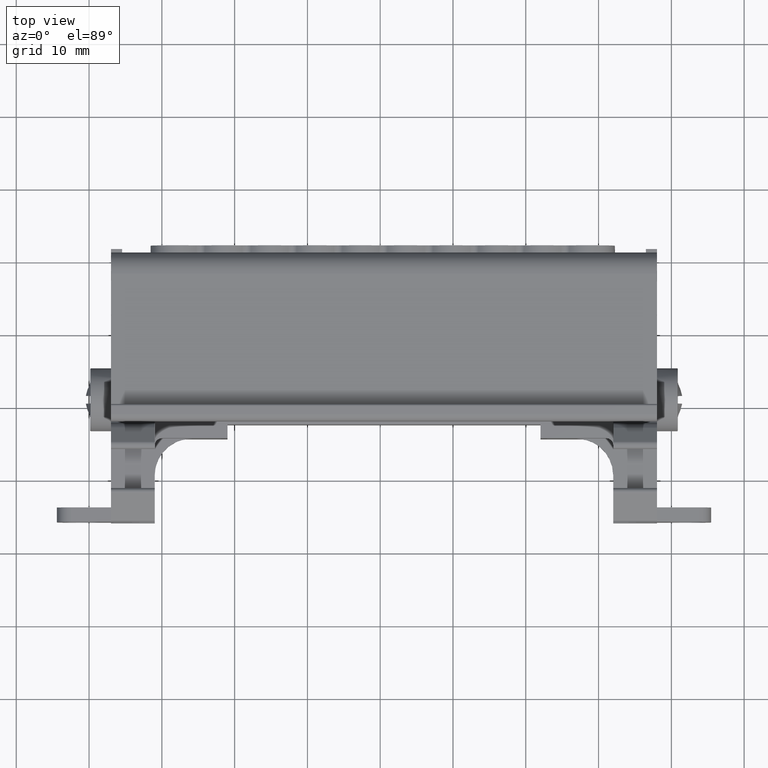
[diagram: clean part render]
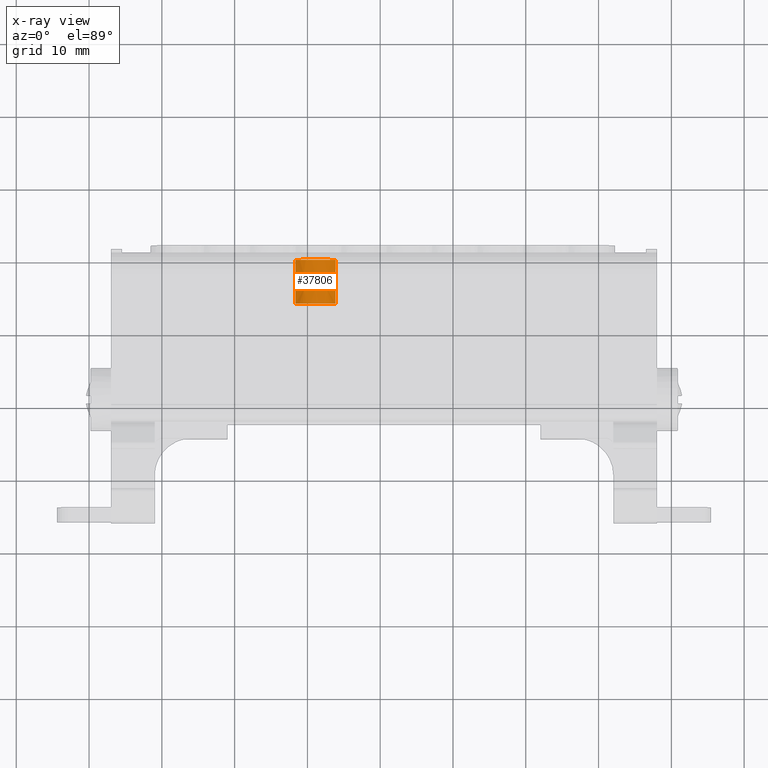
[diagram: x-ray — body ghosted, one internal face saturated and labeled with its STEP entity id]
A machine part, top view, then the same camera in x-ray: the body is ghosted and one INTERNAL B-rep face — a face not visible from any outside direction — is saturated and labeled: STEP entity #37806.
In plain terms, the highlighted conical surface has half-angle 3 deg.
Its self-contained STEP definition (entity closure, byte-faithful):
#1220 = CONICAL_SURFACE ( 'NONE', #1257, 3.724217246605654500, 0.05235987755960551400 ) ;
#1257 = AXIS2_PLACEMENT_3D ( 'NONE', #24613, #24651, #24662 ) ;
#3151 = EDGE_LOOP ( 'NONE', ( #39118, #39223, #39187, #39208 ) ) ;
#3933 = EDGE_CURVE ( 'NONE', #33898, #33921, #22572, .T. ) ;
#4204 = EDGE_CURVE ( 'NONE', #33910, #33875, #39712, .T. ) ;
#4221 = EDGE_CURVE ( 'NONE', #33875, #33921, #39715, .T. ) ;
#4222 = EDGE_CURVE ( 'NONE', #33898, #33910, #39744, .T. ) ;
#21549 = CARTESIAN_POINT ( 'NONE',  ( -236.1391113306501100, -105.8992027544382200, 142.9402541306618000 ) ) ;
#21630 = CARTESIAN_POINT ( 'NONE',  ( -241.6397672310905900, -105.8992027549647900, 142.9402541374069800 ) ) ;
#21633 = CARTESIAN_POINT ( 'NONE',  ( -236.1108892742254000, -99.87903667990821100, 143.4063540216821500 ) ) ;
#21669 = CARTESIAN_POINT ( 'NONE',  ( -241.6679892873095000, -99.87903668031201200, 143.4063540274529800 ) ) ;
#22572 = B_SPLINE_CURVE_WITH_KNOTS ( 'NONE', 3,
 ( #35086, #35098, #35105, #35130, #35091, #35137, #35080, #35082, #35099, #35100, #35083, #35117, #35101, #35119, #35120, #35110, #35103, #35116, #35104, #35113, #35121, #35109, #35122, #35123, #35146, #35189, #35184, #35161, #35170, #35144 ),
 .UNSPECIFIED., .F., .F.,
 ( 4, 1, 2, 2, 2, 1, 2, 2, 2, 1, 2, 2, 2, 1, 2, 2, 4 ),
 ( 0.0000000000000000000, 0.06250000000000785500, 0.09375000000000680000, 0.1250000000000057500, 0.2500000000000093300, 0.3125000000000143800, 0.3437500000000169300, 0.3750000000000194800, 0.5000000000000268700, 0.5625000000000238700, 0.5937500000000223200, 0.6250000000000207600, 0.7499999999999892300, 0.8124999999999768000, 0.8437499999999762400, 0.8749999999999756900, 1.000000000000000000 ),
 .UNSPECIFIED. ) ;
#24613 = CARTESIAN_POINT ( 'NONE',  ( -238.8894392833568100, -99.87903668007902500, 140.9265447534684500 ) ) ;
#24651 = DIRECTION ( 'NONE',  ( -1.117909097848388900E-014, 1.000000000000000000, 0.0000000000000000000 ) ) ;
#24657 = FACE_OUTER_BOUND ( 'NONE', #3151, .T. ) ;
#24662 = DIRECTION ( 'NONE',  ( -1.000000000000000000, -1.117909097848388600E-014, 0.0000000000000000000 ) ) ;
#31072 = CARTESIAN_POINT ( 'NONE',  ( -241.6679892873095000, -99.87903668031201200, 143.4063540274529800 ) ) ;
#31074 = CARTESIAN_POINT ( 'NONE',  ( -241.6490517027158100, -104.0680009801943700, 143.0900255924753400 ) ) ;
#31095 = CARTESIAN_POINT ( 'NONE',  ( -236.1391113306501100, -105.8992027544382200, 142.9402541306618000 ) ) ;
#31105 = CARTESIAN_POINT ( 'NONE',  ( -241.6397672310905900, -105.8992027549647900, 142.9402541374069800 ) ) ;
#31121 = CARTESIAN_POINT ( 'NONE',  ( -236.1298268640001100, -104.0680009801876500, 143.0900255924791500 ) ) ;
#31123 = CARTESIAN_POINT ( 'NONE',  ( -236.1203482633226500, -102.0612789556932100, 143.2451951186091300 ) ) ;
#31124 = CARTESIAN_POINT ( 'NONE',  ( -236.1108892742254000, -99.87903667990821100, 143.4063540216821500 ) ) ;
#31126 = CARTESIAN_POINT ( 'NONE',  ( -241.6585303033939500, -102.0612789556999300, 143.2451951186052400 ) ) ;
#31692 = CARTESIAN_POINT ( 'NONE',  ( -239.4227916267125200, -105.8992027533918500, 144.3352584652580200 ) ) ;
#31718 = CARTESIAN_POINT ( 'NONE',  ( -238.3560869400011200, -105.8992027533918300, 144.3352584652579900 ) ) ;
#31720 = CARTESIAN_POINT ( 'NONE',  ( -236.8718328574477100, -105.8992027533918200, 143.7253048720273500 ) ) ;
#31722 = CARTESIAN_POINT ( 'NONE',  ( -236.1391113306501100, -105.8992027544382200, 142.9402541306618000 ) ) ;
#31725 = CARTESIAN_POINT ( 'NONE',  ( -240.9070457092658400, -105.8992027533918500, 143.7253048720273500 ) ) ;
#31744 = CARTESIAN_POINT ( 'NONE',  ( -241.6397672310905900, -105.8992027549647900, 142.9402541374069800 ) ) ;
#31749 = CARTESIAN_POINT ( 'NONE',  ( -241.3246874863561100, -105.8992027533918500, 143.3705905961018300 ) ) ;
#31751 = CARTESIAN_POINT ( 'NONE',  ( -236.4541910803574200, -105.8992027533918000, 143.3705905961018600 ) ) ;
#31756 = CARTESIAN_POINT ( 'NONE',  ( -239.9557169159074900, -105.8992027533918600, 144.2078319858556200 ) ) ;
#31765 = CARTESIAN_POINT ( 'NONE',  ( -237.8231616508060400, -105.8992027533918200, 144.2078319858556500 ) ) ;
#33875 = VERTEX_POINT ( 'NONE', #21549 ) ;
#33898 = VERTEX_POINT ( 'NONE', #21669 ) ;
#33910 = VERTEX_POINT ( 'NONE', #21630 ) ;
#33921 = VERTEX_POINT ( 'NONE', #21633 ) ;
#35080 = CARTESIAN_POINT ( 'NONE',  ( -240.8820359882094800, -99.87903667988258900, 144.0840475252055100 ) ) ;
#35082 = CARTESIAN_POINT ( 'NONE',  ( -240.6534696064524300, -99.87903667988256000, 144.2171236246763600 ) ) ;
#35083 = CARTESIAN_POINT ( 'NONE',  ( -239.9162213614344200, -99.87903667988257400, 144.5070719159195400 ) ) ;
#35086 = CARTESIAN_POINT ( 'NONE',  ( -241.6679892873095000, -99.87903668031201200, 143.4063540274529800 ) ) ;
#35091 = CARTESIAN_POINT ( 'NONE',  ( -241.1987595915864200, -99.87903667988257400, 143.8490428961445100 ) ) ;
#35098 = CARTESIAN_POINT ( 'NONE',  ( -241.5815586030908000, -99.87903667988261700, 143.5031444036441100 ) ) ;
#35099 = CARTESIAN_POINT ( 'NONE',  ( -240.2907881663946900, -99.87903667988257400, 144.3796163648056300 ) ) ;
#35100 = CARTESIAN_POINT ( 'NONE',  ( -240.1060516278222400, -99.87903667988258900, 144.4508521094373400 ) ) ;
#35101 = CARTESIAN_POINT ( 'NONE',  ( -239.7225102244094300, -99.87903667988257400, 144.5569597787213600 ) ) ;
#35103 = CARTESIAN_POINT ( 'NONE',  ( -238.5665732244058300, -99.87903667988253200, 144.6407413739279100 ) ) ;
#35104 = CARTESIAN_POINT ( 'NONE',  ( -238.2469354614276500, -99.87903667988256000, 144.5954958087595800 ) ) ;
#35105 = CARTESIAN_POINT ( 'NONE',  ( -241.4451714405473700, -99.87903667988258900, 143.6408276061934800 ) ) ;
#35109 = CARTESIAN_POINT ( 'NONE',  ( -237.6090147391115300, -99.87903667988256000, 144.4337124533144300 ) ) ;
#35110 = CARTESIAN_POINT ( 'NONE',  ( -238.7599239116653700, -99.87903667988256000, 144.6507794569401100 ) ) ;
#35113 = CARTESIAN_POINT ( 'NONE',  ( -238.1845342725112600, -99.87903667988254600, 144.5840331741562200 ) ) ;
#35116 = CARTESIAN_POINT ( 'NONE',  ( -238.3746060925633400, -99.87903667988254600, 144.6156068884844200 ) ) ;
#35117 = CARTESIAN_POINT ( 'NONE',  ( -239.7885359109945400, -99.87903667988258900, 144.5412149117633800 ) ) ;
#35119 = CARTESIAN_POINT ( 'NONE',  ( -239.4057218587773000, -99.87903667988257400, 144.6239238595685200 ) ) ;
#35120 = CARTESIAN_POINT ( 'NONE',  ( -239.1484700267403100, -99.87903667988258900, 144.6507270863894500 ) ) ;
#35121 = CARTESIAN_POINT ( 'NONE',  ( -237.8604929871096100, -99.87903667988251800, 144.5156302778294700 ) ) ;
#35122 = CARTESIAN_POINT ( 'NONE',  ( -237.2462875108942100, -99.87903667988254600, 144.2713219504868500 ) ) ;
#35123 = CARTESIAN_POINT ( 'NONE',  ( -237.0701314450126300, -99.87903667988256000, 144.1809274791802700 ) ) ;
#35130 = CARTESIAN_POINT ( 'NONE',  ( -241.2986725602100600, -99.87903667988258900, 143.7672572541146100 ) ) ;
#35137 = CARTESIAN_POINT ( 'NONE',  ( -241.1488360659035900, -99.87903667988258900, 143.8878348103214900 ) ) ;
#35144 = CARTESIAN_POINT ( 'NONE',  ( -236.1108892742254000, -99.87903667990821100, 143.4063540216821500 ) ) ;
#35146 = CARTESIAN_POINT ( 'NONE',  ( -236.9017867014717600, -99.87903667988251800, 144.0767341780344900 ) ) ;
#35161 = CARTESIAN_POINT ( 'NONE',  ( -236.4748213315515100, -99.87903667988254600, 143.7737700961949400 ) ) ;
#35170 = CARTESIAN_POINT ( 'NONE',  ( -236.2839835878989400, -99.87903667988254600, 143.6001956524653700 ) ) ;
#35184 = CARTESIAN_POINT ( 'NONE',  ( -236.7355478125484200, -99.87903667988253200, 143.9654041675743500 ) ) ;
#35189 = CARTESIAN_POINT ( 'NONE',  ( -236.7912927218536700, -99.87903667988251800, 144.0042055706396700 ) ) ;
#37806 = ADVANCED_FACE ( 'NONE', ( #24657 ), #1220, .T. ) ;
#39118 = ORIENTED_EDGE ( 'NONE', *, *, #3933, .F. ) ;
#39187 = ORIENTED_EDGE ( 'NONE', *, *, #4204, .T. ) ;
#39208 = ORIENTED_EDGE ( 'NONE', *, *, #4221, .T. ) ;
#39223 = ORIENTED_EDGE ( 'NONE', *, *, #4222, .T. ) ;
#39712 = B_SPLINE_CURVE_WITH_KNOTS ( 'NONE', 3,
 ( #31744, #31749, #31725, #31756, #31692, #31718, #31765, #31720, #31751, #31722 ),
 .UNSPECIFIED., .F., .F.,
 ( 4, 2, 2, 2, 4 ),
 ( 0.0000000000000000000, 0.2500000000000000000, 0.5000000000000000000, 0.7500000000000000000, 1.000000000000000000 ),
 .UNSPECIFIED. ) ;
#39715 = B_SPLINE_CURVE_WITH_KNOTS ( 'NONE', 3,
 ( #31095, #31121, #31123, #31124 ),
 .UNSPECIFIED., .F., .F.,
 ( 4, 4 ),
 ( 0.0000000000000000000, 1.000000000000000000 ),
 .UNSPECIFIED. ) ;
#39744 = B_SPLINE_CURVE_WITH_KNOTS ( 'NONE', 3,
 ( #31072, #31126, #31074, #31105 ),
 .UNSPECIFIED., .F., .F.,
 ( 4, 4 ),
 ( 0.0000000000000000000, 1.000000000000000000 ),
 .UNSPECIFIED. ) ;